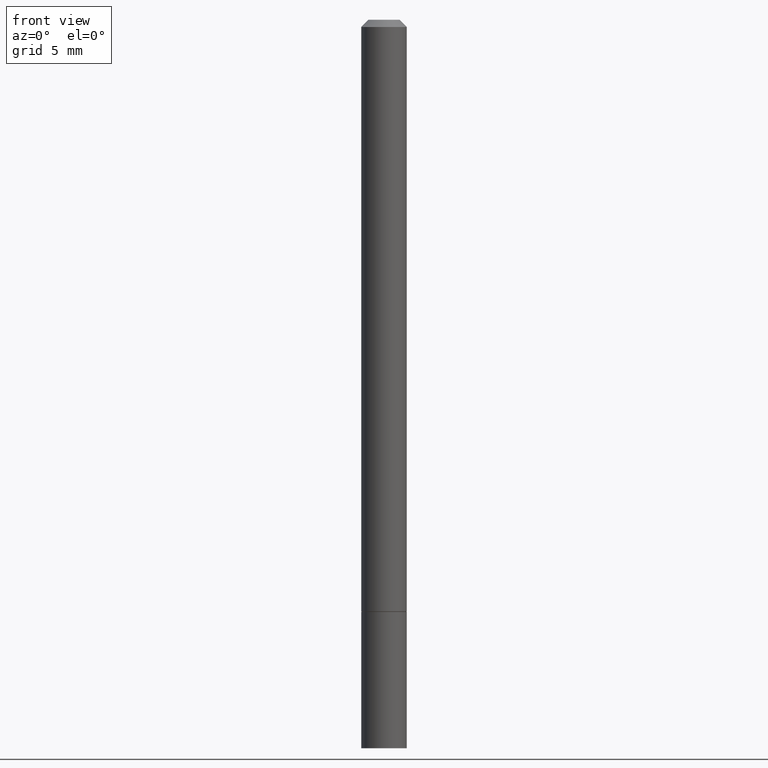
[diagram: clean part render]
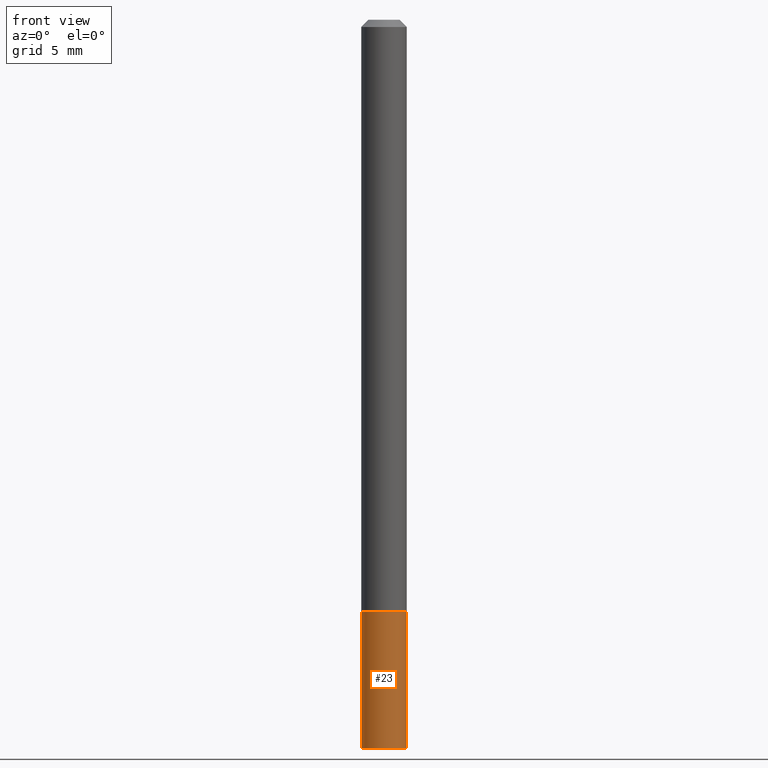
[diagram: same view with one face highlighted and labeled with its STEP entity id]
A machine part, front view. The second image highlights one B-rep face of the part: STEP entity #23.
In plain terms, the highlighted cylindrical surface (edge-blend (fillet) strip) has radius 1.5875 mm, axis along (-0, 0, 1).
Its self-contained STEP definition (entity closure, byte-faithful):
#13 = VERTEX_POINT ( 'NONE', #302 ) ;
#18 = FACE_OUTER_BOUND ( 'NONE', #305, .T. ) ;
#23 = ADVANCED_FACE ( 'NONE', ( #18 ), #51, .T. ) ;
#31 = CIRCLE ( 'NONE', #213, 0.06250000000000001388 ) ;
#35 = DIRECTION ( 'NONE',  ( -2.445468806185136597E-29, 3.491481338843145583E-15, 1.000000000000000000 ) ) ;
#39 = DIRECTION ( 'NONE',  ( 1.000000000000000000, -6.982962677686261189E-15, 0.000000000000000000 ) ) ;
#50 = VERTEX_POINT ( 'NONE', #223 ) ;
#51 = CYLINDRICAL_SURFACE ( 'NONE', #307, 0.06250000000000001388 ) ;
#75 = VERTEX_POINT ( 'NONE', #284 ) ;
#79 = CARTESIAN_POINT ( 'NONE',  ( 0.000000000000000000, 0.000000000000000000, 0.000000000000000000 ) ) ;
#83 = CIRCLE ( 'NONE', #129, 0.06250000000000001388 ) ;
#90 = CARTESIAN_POINT ( 'NONE',  ( 0.06250000000000001388, -4.364351673553918173E-16, 3.047610484872460571E-30 ) ) ;
#94 = EDGE_CURVE ( 'NONE', #13, #332, #259, .T. ) ;
#98 = EDGE_CURVE ( 'NONE', #332, #50, #31, .T. ) ;
#129 = AXIS2_PLACEMENT_3D ( 'NONE', #353, #35, #39 ) ;
#131 = ORIENTED_EDGE ( 'NONE', *, *, #98, .F. ) ;
#132 = ORIENTED_EDGE ( 'NONE', *, *, #331, .T. ) ;
#139 = DIRECTION ( 'NONE',  ( -2.445468806185136597E-29, 3.491481338843145583E-15, 1.000000000000000000 ) ) ;
#150 = DIRECTION ( 'NONE',  ( -2.445468806185136877E-29, 3.491481338843145188E-15, 1.000000000000000000 ) ) ;
#167 = CARTESIAN_POINT ( 'NONE',  ( 3.973886810050846970E-29, -5.673657175620112213E-15, -1.625000000000000000 ) ) ;
#178 = CARTESIAN_POINT ( 'NONE',  ( -0.06250000000000001388, -5.884220716803138678E-15, -1.625000000000000000 ) ) ;
#194 = VECTOR ( 'NONE', #150, 39.37007874015748143 ) ;
#202 = EDGE_CURVE ( 'NONE', #75, #50, #205, .T. ) ;
#205 = LINE ( 'NONE', #90, #194 ) ;
#213 = AXIS2_PLACEMENT_3D ( 'NONE', #167, #139, #310 ) ;
#223 = CARTESIAN_POINT ( 'NONE',  ( 0.06250000000000001388, -6.110092342975503093E-15, -1.625000000000000000 ) ) ;
#226 = CARTESIAN_POINT ( 'NONE',  ( -0.06250000000000001388, 4.440892098500627148E-16, -3.074334431409317165E-30 ) ) ;
#229 = DIRECTION ( 'NONE',  ( -2.445468806185136877E-29, 3.491481338843145188E-15, 1.000000000000000000 ) ) ;
#247 = ORIENTED_EDGE ( 'NONE', *, *, #202, .T. ) ;
#248 = ORIENTED_EDGE ( 'NONE', *, *, #94, .F. ) ;
#256 = VECTOR ( 'NONE', #229, 39.37007874015748143 ) ;
#259 = LINE ( 'NONE', #226, #256 ) ;
#284 = CARTESIAN_POINT ( 'NONE',  ( 0.06250000000000001388, -7.419397845041682046E-15, -2.000000000000000000 ) ) ;
#302 = CARTESIAN_POINT ( 'NONE',  ( -0.06250000000000001388, -5.884220716803138678E-15, -2.000000000000000000 ) ) ;
#305 = EDGE_LOOP ( 'NONE', ( #248, #132, #247, #131 ) ) ;
#307 = AXIS2_PLACEMENT_3D ( 'NONE', #79, #312, #344 ) ;
#310 = DIRECTION ( 'NONE',  ( 1.000000000000000000, -6.982962677686261189E-15, 0.000000000000000000 ) ) ;
#312 = DIRECTION ( 'NONE',  ( -2.445468806185136597E-29, 3.491481338843145583E-15, 1.000000000000000000 ) ) ;
#331 = EDGE_CURVE ( 'NONE', #13, #75, #83, .T. ) ;
#332 = VERTEX_POINT ( 'NONE', #178 ) ;
#344 = DIRECTION ( 'NONE',  ( 1.000000000000000000, -6.982962677686267499E-15, 4.876176775795935793E-29 ) ) ;
#353 = CARTESIAN_POINT ( 'NONE',  ( 4.890937612370273194E-29, -6.982962677686291165E-15, -2.000000000000000000 ) ) ;